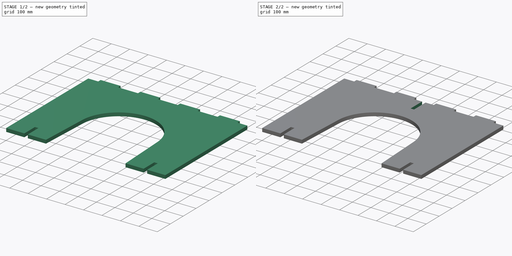
[diagram: build sequence overview — one tinted view per stage of 2, left to right]
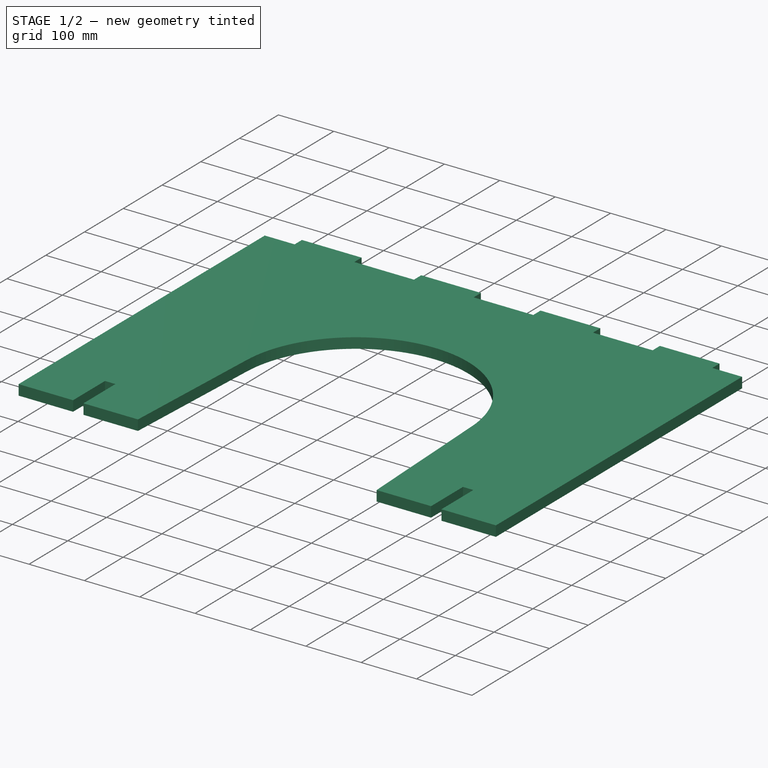
[diagram: stage 1 of 2 — iso view after this stage's code; geometry added in this stage tinted green]
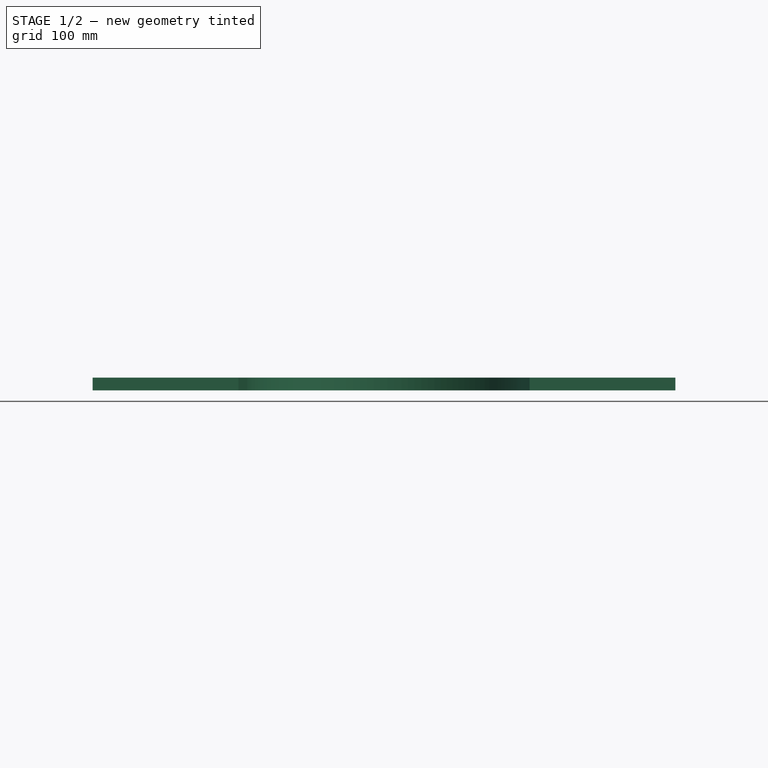
[diagram: stage 1 of 2 — front view after this stage's code; geometry added in this stage tinted green]
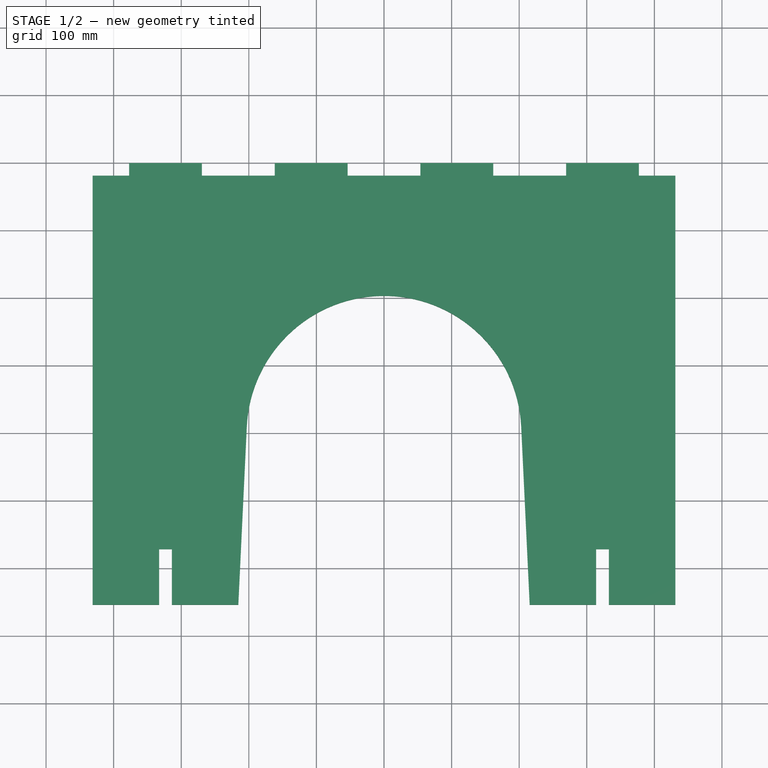
[diagram: stage 1 of 2 — top view after this stage's code; geometry added in this stage tinted green]
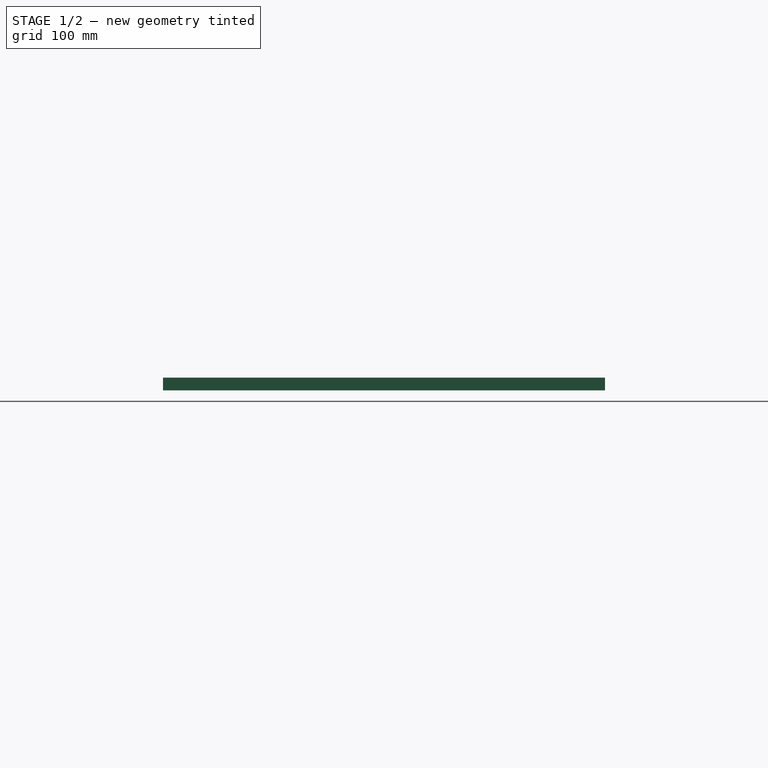
[diagram: stage 1 of 2 — right view after this stage's code; geometry added in this stage tinted green]
FCSTD DOCUMENT  (FreeCAD 0.19R24291 (Git))
Label: stand_base_part
License: All rights reserved
LicenseURL: http://en.wikipedia.org/wiki/All_rights_reserved
objects: Sketcher::SketchObject×2, App::Link×1, PartDesign::Pad×1, PartDesign::Pocket×1, PartDesign::Body×1, App::Part×1
note: 7 computed .brp shape members not serialized (recipe doc carries the construction recipe); baked Part::Feature solids carry a one-line shape summary decoded from their .brp
EXTERNAL_REF file=cog_table.FCStd obj=Spreadsheet

FEATURE [Sketcher::SketchObject] Sketch  label="StandBaseSketch"
  FullyConstrained = true
  MapMode = 5
  expr: Constraints[22] = <<param>>.above_leg_arch
  expr: Constraints[16] = <<param>>.leg_arch_radius
  expr: Constraints[15] = <<param>>.leg_height
  expr: Constraints[58] = <<param>>.table_diagonal
  expr: Constraints[87] = <<param>>.table_tab_length
  expr: Constraints[77] = <<cog_table>>#<<param>>.foot_support_slot_length
  expr: Constraints[80] = <<param>>.foot_diagonal
  expr: Constraints[81] = <<param>>.material_thickness
  expr: Constraints[94] = <<param>>.material_thickness
  sketch-geometry (34):
    g0: LineSegment StartX=-431.052 StartY=381 StartZ=0 EndX=-377.171 EndY=381 EndZ=0
    g1: LineSegment StartX=431.052 StartY=381 StartZ=0 EndX=431.052 EndY=-254 EndZ=0
    g2: LineSegment StartX=431.052 StartY=-254 StartZ=0 EndX=332.687 EndY=-254 EndZ=0
    g3: LineSegment StartX=-431.052 StartY=381 StartZ=0 EndX=-431.052 EndY=-254 EndZ=0
    g4: LineSegment StartX=-431.052 StartY=-254 StartZ=0 EndX=-332.687 EndY=-254 EndZ=0
    g5: ArcOfCircle CenterX=0 CenterY=0 CenterZ=0 NormalX=0 NormalY=0 NormalZ=1 AngleXU=0 Radius=203.2 StartAngle=0.0475856 EndAngle=3.09401
    g6: LineSegment StartX=-215.526 StartY=-254 StartZ=0 EndX=-202.97 EndY=9.66574 EndZ=0
    g7: LineSegment StartX=215.526 StartY=-254 StartZ=0 EndX=202.97 EndY=9.66574 EndZ=0
    g8: LineSegment StartX=-202.97 StartY=9.66574 StartZ=0 EndX=-1.7621e-12 EndY=203.2 EndZ=0
    g9: LineSegment StartX=202.97 StartY=9.66574 StartZ=0 EndX=-1.7621e-12 EndY=203.2 EndZ=0
    g10: LineSegment StartX=-332.687 StartY=-254 StartZ=0 EndX=-332.687 EndY=-171.704 EndZ=0
    g11: LineSegment StartX=-332.687 StartY=-171.704 StartZ=0 EndX=-313.891 EndY=-171.704 EndZ=0
    g12: LineSegment StartX=-313.891 StartY=-171.704 StartZ=0 EndX=-313.891 EndY=-254 EndZ=0
    g13: LineSegment StartX=313.891 StartY=-254 StartZ=0 EndX=313.891 EndY=-171.704 EndZ=0
    g14: LineSegment StartX=313.891 StartY=-171.704 StartZ=0 EndX=332.687 EndY=-171.704 EndZ=0
    g15: LineSegment StartX=332.687 StartY=-171.704 StartZ=0 EndX=332.687 EndY=-254 EndZ=0
    g16: LineSegment StartX=-377.171 StartY=381 StartZ=0 EndX=-377.171 EndY=399.796 EndZ=0
    g17: LineSegment StartX=-377.171 StartY=399.796 StartZ=0 EndX=-269.408 EndY=399.796 EndZ=0
    g18: LineSegment StartX=-269.408 StartY=399.796 StartZ=0 EndX=-269.408 EndY=381 EndZ=0
    g19: LineSegment StartX=-161.645 StartY=381 StartZ=0 EndX=-161.645 EndY=399.796 EndZ=0
    g20: LineSegment StartX=-161.645 StartY=399.796 StartZ=0 EndX=-53.8815 EndY=399.796 EndZ=0
    g21: LineSegment StartX=-53.8815 StartY=399.796 StartZ=0 EndX=-53.8815 EndY=381 EndZ=0
    g22: LineSegment StartX=53.8815 StartY=381 StartZ=0 EndX=53.8815 EndY=399.796 EndZ=0
    g23: LineSegment StartX=53.8815 StartY=399.796 StartZ=0 EndX=161.645 EndY=399.796 EndZ=0
    g24: LineSegment StartX=161.645 StartY=399.796 StartZ=0 EndX=161.645 EndY=381 EndZ=0
    g25: LineSegment StartX=269.408 StartY=381 StartZ=0 EndX=269.408 EndY=399.796 EndZ=0
    g26: LineSegment StartX=269.408 StartY=399.796 StartZ=0 EndX=377.171 EndY=399.796 EndZ=0
    g27: LineSegment StartX=377.171 StartY=399.796 StartZ=0 EndX=377.171 EndY=381 EndZ=0
    g28: LineSegment StartX=-269.408 StartY=381 StartZ=0 EndX=-161.645 EndY=381 EndZ=0
    g29: LineSegment StartX=-53.8815 StartY=381 StartZ=0 EndX=53.8815 EndY=381 EndZ=0
    g30: LineSegment StartX=161.645 StartY=381 StartZ=0 EndX=269.408 EndY=381 EndZ=0
    g31: LineSegment StartX=377.171 StartY=381 StartZ=0 EndX=431.052 EndY=381 EndZ=0
    g32: LineSegment StartX=-313.891 StartY=-254 StartZ=0 EndX=-215.526 EndY=-254 EndZ=0
    g33: LineSegment StartX=313.891 StartY=-254 StartZ=0 EndX=215.526 EndY=-254 EndZ=0
  constraints (98):
    c: Horizontal(g0)
    c: Coincident(g1,g31)
    c: Vertical(g1)
    c: Coincident(g2,g1)
    c: Horizontal(g2)
    c: Coincident(g3,g0)
    c: Vertical(g3)
    c: Coincident(g4,g3)
    c: Horizontal(g4)
    c: Coincident(g5,g-1)
    c: Coincident(g6,g32)
    c: Coincident(g7,g33)
    c: Tangent(g6,g5) = 1.5708
    c: Tangent(g7,g5) = -1.5708
    c: Symmetric(g32,g33,g-2)
    c: Distance(g3) = 635
    c: Radius(g5) = 203.2
    c: Coincident(g8,g5)
    c: PointOnObject(g8,g5)
    c: Coincident(g9,g5)
    c: Coincident(g9,g8)
    c: Equal(g8,g9)
    c: DistanceY(g8,g0) = 177.8
    c: Vertical(g10)
    c: Coincident(g11,g10)
    c: Horizontal(g11)
    c: Vertical(g12)
    c: Vertical(g13)
    c: Coincident(g14,g13)
    c: Horizontal(g14)
    c: Coincident(g15,g14)
    c: Vertical(g15)
    c: Vertical(g16)
    c: Coincident(g17,g16)
    c: Horizontal(g17)
    c: Coincident(g18,g17)
    c: Vertical(g18)
    c: PointOnObject(g19,g0)
    c: Vertical(g19)
    c: Coincident(g20,g19)
    c: Horizontal(g20)
    c: Coincident(g21,g20)
    c: PointOnObject(g21,g0)
    c: Vertical(g21)
    c: PointOnObject(g22,g0)
    c: Vertical(g22)
    c: Coincident(g23,g22)
    c: Horizontal(g23)
    c: Coincident(g24,g23)
    c: PointOnObject(g24,g0)
    c: Vertical(g24)
    c: PointOnObject(g25,g0)
    c: Vertical(g25)
    c: Coincident(g26,g25)
    c: Horizontal(g26)
    c: Coincident(g27,g26)
    c: PointOnObject(g27,g0)
    c: Vertical(g27)
    c: Distance(g0,g31) = 862.105
    c: Coincident(g0,g16)
    c: Coincident(g28,g18)
    c: Tangent(g0,g28)
    c: PointOnObject(g28,g19)
    c: PointOnObject(g29,g21)
    c: Tangent(g28,g29)
    c: PointOnObject(g29,g22)
    c: PointOnObject(g30,g24)
    c: Tangent(g29,g30)
    c: PointOnObject(g30,g25)
    c: PointOnObject(g31,g27)
    c: Tangent(g30,g31)
    c: Coincident(g4,g10)
    c: Coincident(g32,g12)
    c: Tangent(g4,g32)
    c: Coincident(g2,g15)
    c: Coincident(g33,g13)
    c: Tangent(g2,g33)
    c: Distance(g10) = 82.296
    c: Coincident(g12,g11)
    c: Equal(g10,g13)
    c: Distance(g3,g6) = 215.526
    c: Distance(g11) = 18.796
    c: Equal(g4,g32)
    c: Equal(g32,g33)
    c: Equal(g14,g11)
    c: Equal(g2,g4)
    c: Equal(g0,g31)
    c: Distance(g17) = 107.763
    c: Equal(g28,g17)
    c: Equal(g17,g20)
    c: Equal(g17,g29)
    c: Equal(g17,g23)
    c: Equal(g17,g30)
    c: Equal(g17,g26)
    c: Distance(g16) = 18.796
    c: Equal(g16,g19)
    c: Equal(g16,g22)
    c: Equal(g16,g25)
FEATURE [App::Link] Link  label="param"
  LinkedObject = -> <external cog_table.FCStd>#Spreadsheet
FEATURE [PartDesign::Pad] Pad
  Direction = (1,1,1)
  Length = 18.796
  Length2 = 100
  Profile = -> Sketch
  Type = 0
  expr: Length = <<param>>.material_thickness
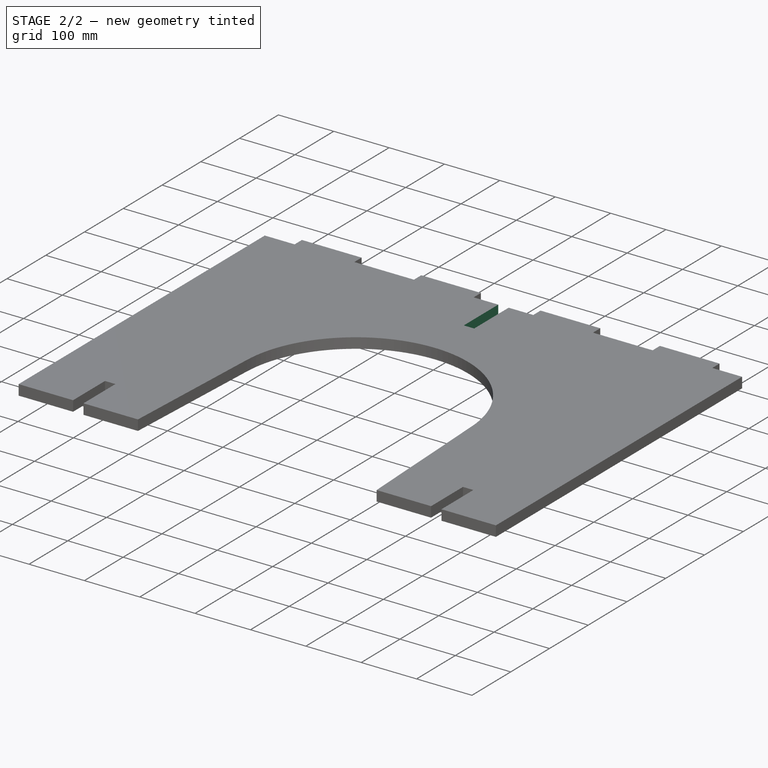
[diagram: stage 2 of 2 — iso view after this stage's code; geometry added in this stage tinted green]
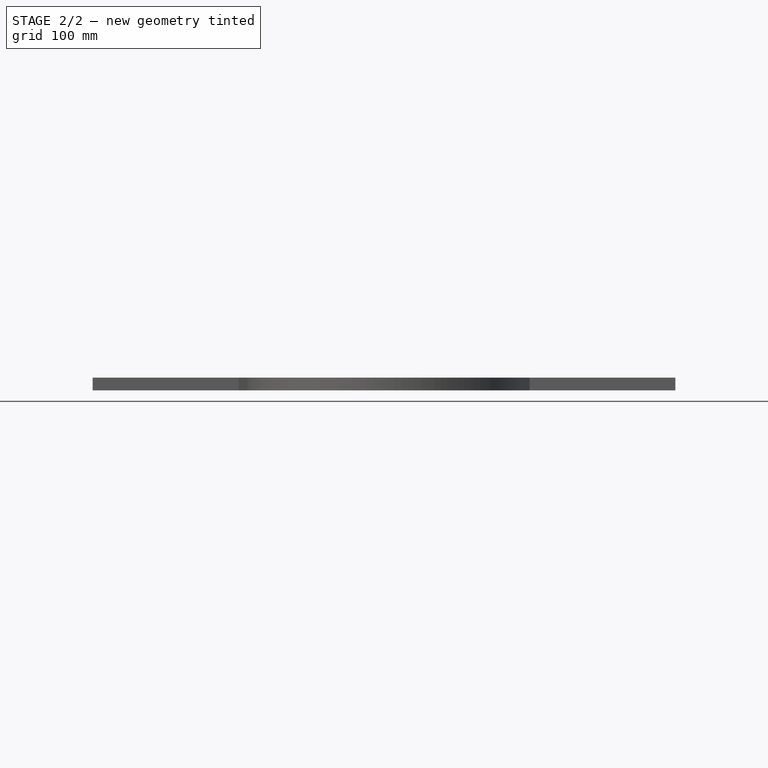
[diagram: stage 2 of 2 — front view after this stage's code; geometry added in this stage tinted green]
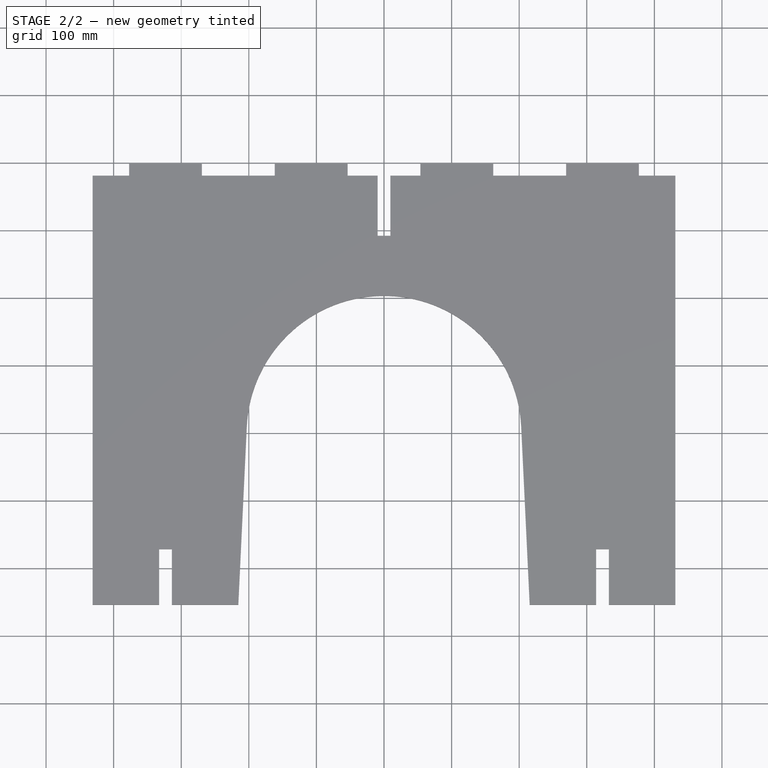
[diagram: stage 2 of 2 — top view after this stage's code; geometry added in this stage tinted green]
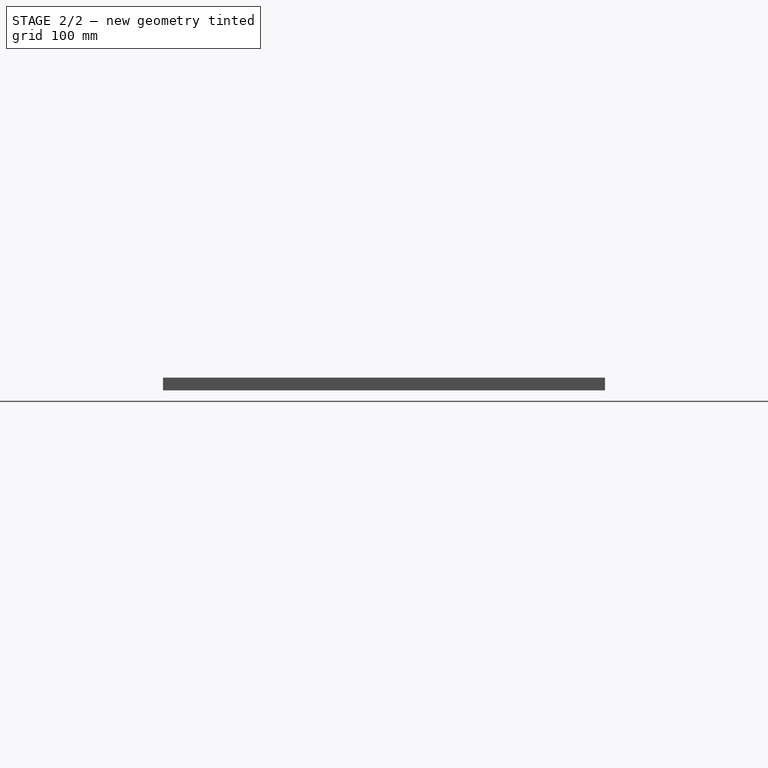
[diagram: stage 2 of 2 — right view after this stage's code; geometry added in this stage tinted green]
FEATURE [Sketcher::SketchObject] Sketch001
  ExternalGeometry = -> [Pad]
  FullyConstrained = true
  MapMode = 5
  Placement = pos=(0,0,18.796) rot=(0,0,1;0rad)
  Support = -> [Pad]
  expr: Constraints[19] = <<param>>.material_thickness
  sketch-geometry (8):
    g0: LineSegment StartX=-53.8815 StartY=381 StartZ=0 EndX=2.274e-13 EndY=381 EndZ=0
    g1: LineSegment StartX=2.274e-13 StartY=381 StartZ=0 EndX=53.8815 EndY=381 EndZ=0
    g2: LineSegment StartX=2.274e-13 StartY=381 StartZ=0 EndX=2.274e-13 EndY=292.1 EndZ=0
    g3: LineSegment StartX=2.274e-13 StartY=292.1 StartZ=0 EndX=2.274e-13 EndY=203.2 EndZ=0
    g4: LineSegment StartX=-9.398 StartY=381 StartZ=0 EndX=-9.398 EndY=292.1 EndZ=0
    g5: LineSegment StartX=-9.398 StartY=292.1 StartZ=0 EndX=9.398 EndY=292.1 EndZ=0
    g6: LineSegment StartX=9.398 StartY=292.1 StartZ=0 EndX=9.398 EndY=381 EndZ=0
    g7: LineSegment StartX=-9.398 StartY=381 StartZ=0 EndX=9.398 EndY=381 EndZ=0
  constraints (22):
    c: Coincident(g0,g-4)
    c: Coincident(g1,g-4)
    c: Coincident(g2,g0)
    c: Vertical(g2)
    c: PointOnObject(g3,g-3)
    c: Vertical(g3)
    c: Coincident(g3,g2)
    c: Coincident(g0,g1)
    c: Equal(g0,g1)
    c: Equal(g2,g3)
    c: Horizontal(g0)
    c: PointOnObject(g4,g0)
    c: Vertical(g4)
    c: Coincident(g5,g4)
    c: PointOnObject(g6,g1)
    c: Vertical(g6)
    c: Symmetric(g4,g5,g2)
    c: Coincident(g6,g5)
    c: PointOnObject(g2,g5)
    c: Distance(g5) = 18.796
    c: Coincident(g7,g4)
    c: Coincident(g7,g6)
FEATURE [PartDesign::Pocket] Pocket
  BaseFeature = -> Pad
  Length = 5
  Length2 = 100
  Profile = -> Sketch001
  Type = 1
FEATURE [PartDesign::Body] Body
  Group = -> [Sketch,Pad,Sketch001,Pocket]
  Origin = -> Origin
  Tip = -> Pocket
FEATURE [App::Part] Part
  Group = -> [Body]
  Origin = -> Origin001
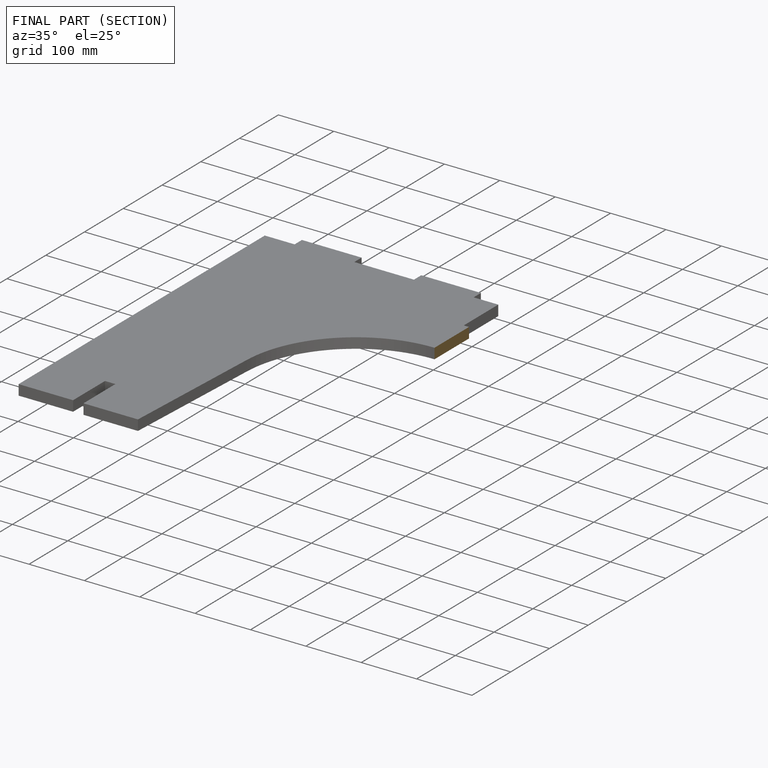
[diagram: finished part — half-section view (interior)]
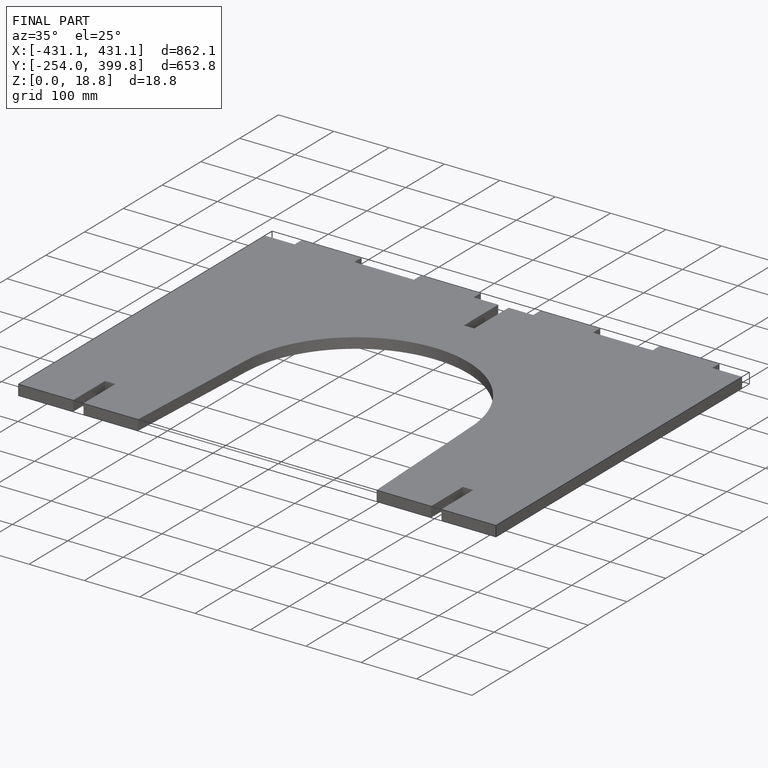
[diagram: finished part — iso view with bounding-box wireframe]
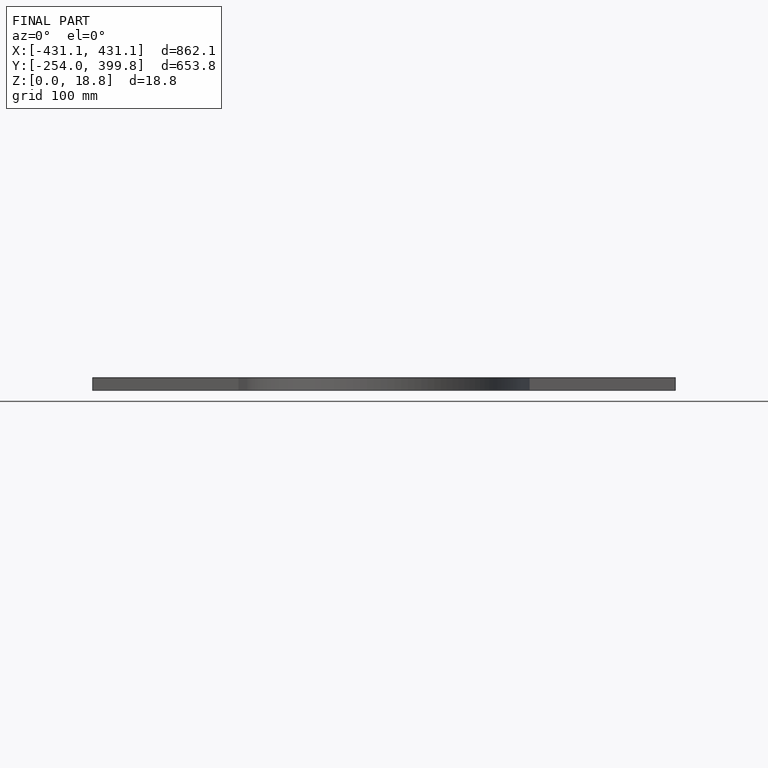
[diagram: finished part — front view with bounding-box wireframe]
